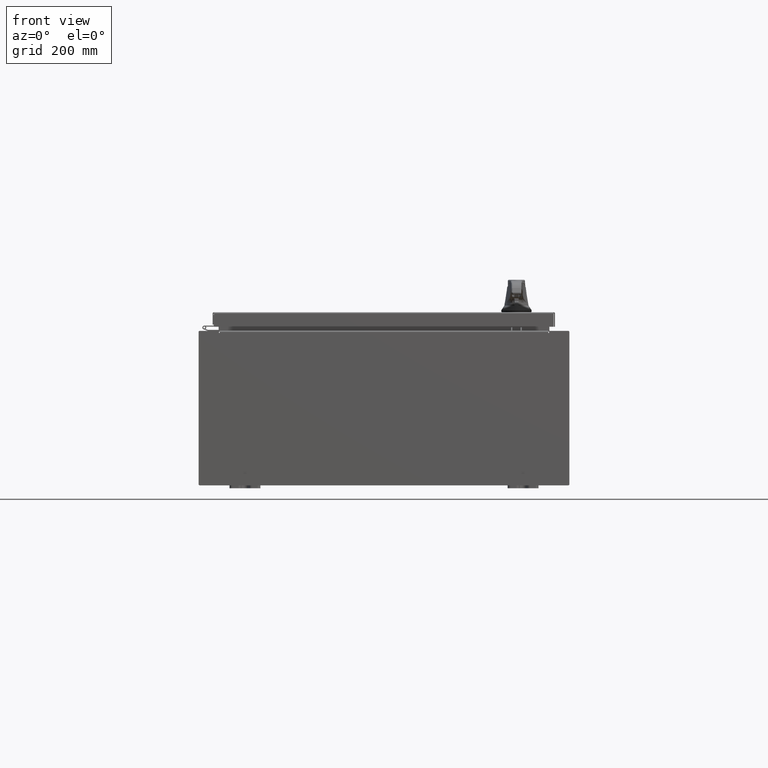
[diagram: clean part render]
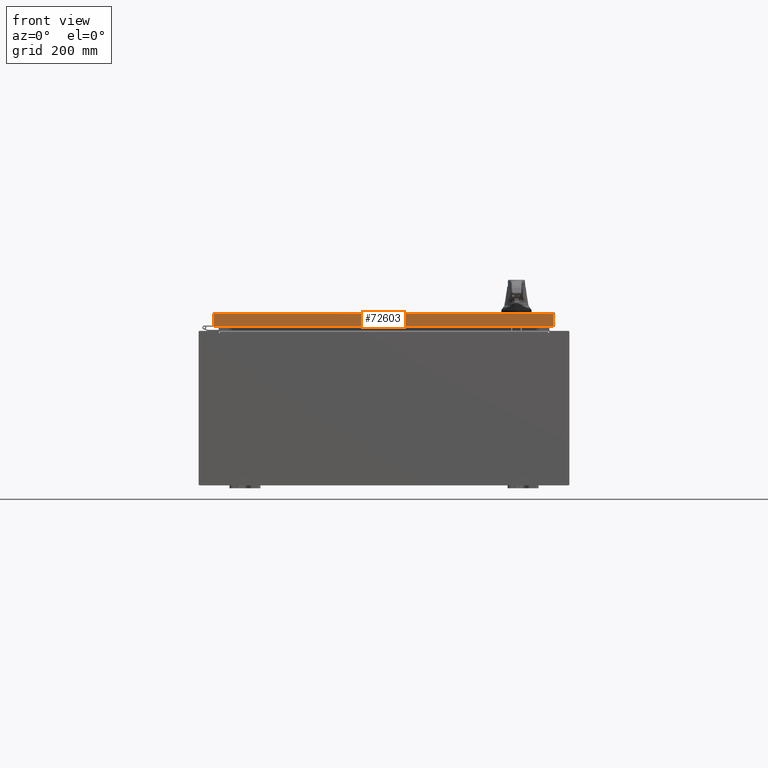
[diagram: same view with one face highlighted and labeled with its STEP entity id]
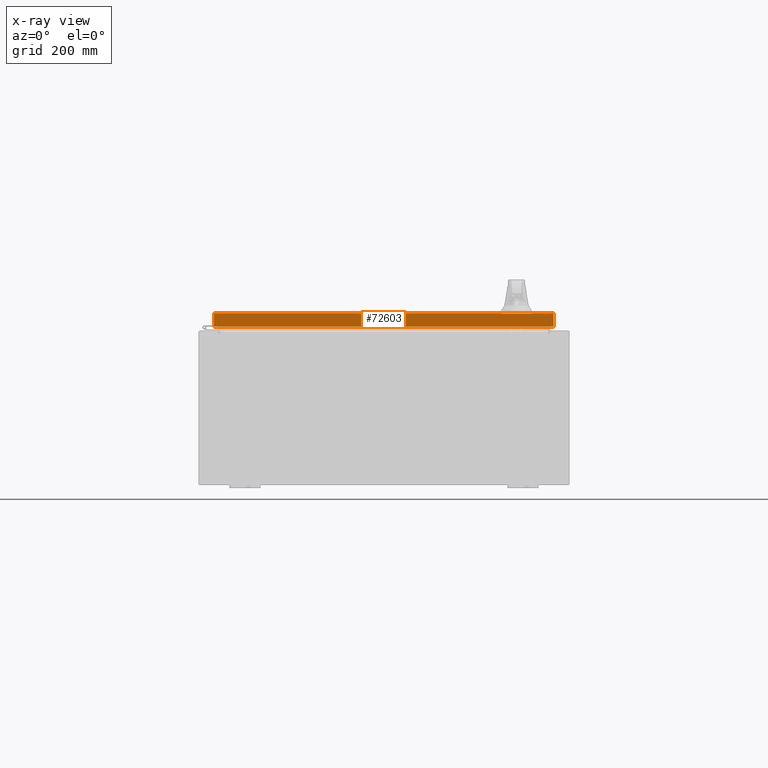
[diagram: x-ray of the same camera — body ghosted, the highlighted face saturated]
A machine part, front view. The second image highlights one B-rep face of the part: STEP entity #72603.
The next image is the same camera in x-ray: the body ghosted, the highlighted face saturated — about 0% of this face is hidden behind the body in this view.
In plain terms, the highlighted planar face has unit normal (-0, 1, -0).
Its self-contained STEP definition (entity closure, byte-faithful):
#4824 = VERTEX_POINT ( 'NONE', #91188 ) ;
#5714 = DIRECTION ( 'NONE',  ( 0.0000000000000000000, 2.532419924601866100E-015, 1.000000000000000000 ) ) ;
#7216 = ORIENTED_EDGE ( 'NONE', *, *, #46457, .F. ) ;
#7722 = EDGE_CURVE ( 'NONE', #24724, #53052, #83443, .T. ) ;
#8386 = VECTOR ( 'NONE', #37418, 39.37007874015748100 ) ;
#9359 = DIRECTION ( 'NONE',  ( -1.000000000000000000, -0.0000000000000000000, 1.233005954894504400E-016 ) ) ;
#18062 = VECTOR ( 'NONE', #60938, 39.37007874015748100 ) ;
#24724 = VERTEX_POINT ( 'NONE', #108518 ) ;
#33986 = VERTEX_POINT ( 'NONE', #107024 ) ;
#37418 = DIRECTION ( 'NONE',  ( 0.0000000000000000000, -2.532419924601866100E-015, -1.000000000000000000 ) ) ;
#40082 = LINE ( 'NONE', #79871, #18062 ) ;
#42708 = ORIENTED_EDGE ( 'NONE', *, *, #101268, .F. ) ;
#43004 = ORIENTED_EDGE ( 'NONE', *, *, #7722, .T. ) ;
#45581 = LINE ( 'NONE', #75109, #89777 ) ;
#46457 = EDGE_CURVE ( 'NONE', #24724, #4824, #68855, .T. ) ;
#48062 = DIRECTION ( 'NONE',  ( 1.000000000000000000, 3.122488847327593500E-031, -7.817847125977043000E-046 ) ) ;
#53052 = VERTEX_POINT ( 'NONE', #115180 ) ;
#55946 = AXIS2_PLACEMENT_3D ( 'NONE', #99496, #61984, #5714 ) ;
#60938 = DIRECTION ( 'NONE',  ( -0.0000000000000000000, -2.532419924601866100E-015, -1.000000000000000000 ) ) ;
#61984 = DIRECTION ( 'NONE',  ( -3.122488847327593000E-031, 1.000000000000000000, -2.532419924601866100E-015 ) ) ;
#62272 = EDGE_LOOP ( 'NONE', ( #7216, #43004, #109287, #42708 ) ) ;
#68786 = EDGE_CURVE ( 'NONE', #33986, #53052, #45581, .T. ) ;
#68855 = LINE ( 'NONE', #104463, #118937 ) ;
#72603 = ADVANCED_FACE ( 'NONE', ( #74499 ), #118422, .F. ) ;
#74499 = FACE_OUTER_BOUND ( 'NONE', #62272, .T. ) ;
#75109 = CARTESIAN_POINT ( 'NONE',  ( 11.07799999999999600, -17.09399999999999800, -0.9376999999999997600 ) ) ;
#79871 = CARTESIAN_POINT ( 'NONE',  ( 10.98915786437626500, -17.09399999999999800, -0.07469999999999980800 ) ) ;
#83443 = LINE ( 'NONE', #93786, #8386 ) ;
#89777 = VECTOR ( 'NONE', #9359, 39.37007874015748100 ) ;
#91188 = CARTESIAN_POINT ( 'NONE',  ( 10.98915786437626700, -17.09399999999999800, -0.08770000000000008300 ) ) ;
#93786 = CARTESIAN_POINT ( 'NONE',  ( -10.98915786437626900, -17.09399999999999800, 4.354999984715587200E-014 ) ) ;
#99496 = CARTESIAN_POINT ( 'NONE',  ( 5.337582435621786900E-030, -17.09399999999999800, 4.354999984715587200E-014 ) ) ;
#101268 = EDGE_CURVE ( 'NONE', #4824, #33986, #40082, .T. ) ;
#104463 = CARTESIAN_POINT ( 'NONE',  ( 11.07799999999999600, -17.09399999999999800, -0.08770000000000008300 ) ) ;
#107024 = CARTESIAN_POINT ( 'NONE',  ( 10.98915786437626500, -17.09399999999999800, -0.9376999999999997600 ) ) ;
#108518 = CARTESIAN_POINT ( 'NONE',  ( -10.98915786437627200, -17.09399999999999800, -0.08770000000000008300 ) ) ;
#109287 = ORIENTED_EDGE ( 'NONE', *, *, #68786, .F. ) ;
#115180 = CARTESIAN_POINT ( 'NONE',  ( -10.98915786437627200, -17.09399999999999800, -0.9376999999999970900 ) ) ;
#118422 = PLANE ( 'NONE',  #55946 ) ;
#118937 = VECTOR ( 'NONE', #48062, 39.37007874015748100 ) ;